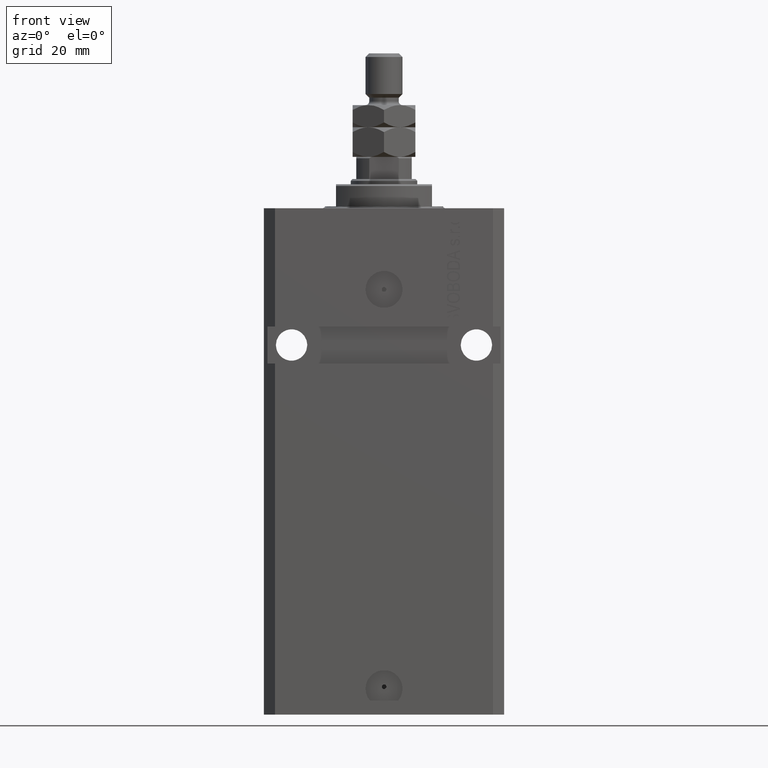
[diagram: clean part render]
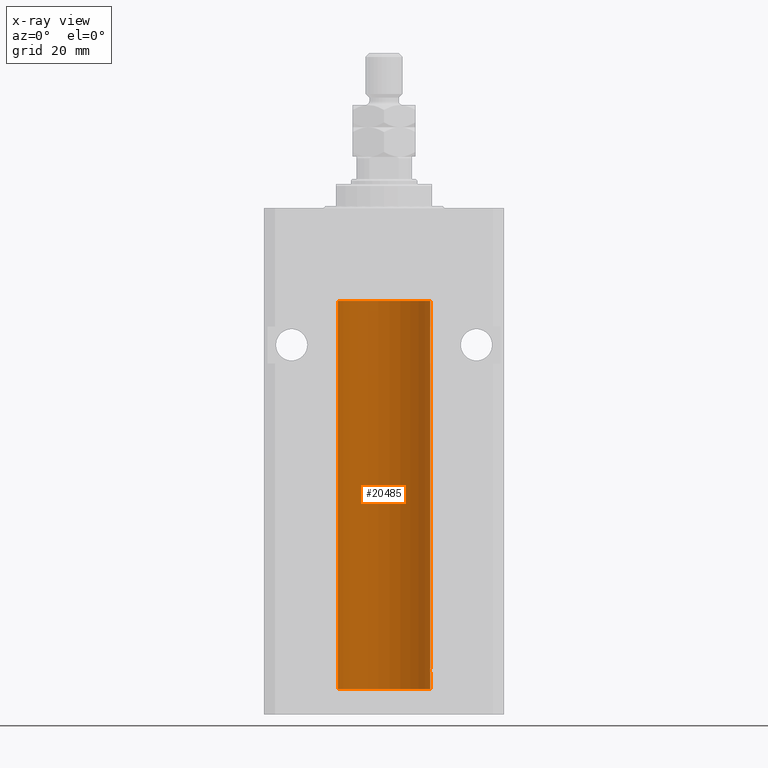
[diagram: x-ray — body ghosted, one internal face saturated and labeled with its STEP entity id]
A machine part, front view, then the same camera in x-ray: the body is ghosted and one INTERNAL B-rep face — a face not visible from any outside direction — is saturated and labeled: STEP entity #20485.
In plain terms, the highlighted cylindrical surface (partial cylindrical patch) has radius 12.5 mm, axis along (0, 0, 1).
Its self-contained STEP definition (entity closure, byte-faithful):
#408 = CARTESIAN_POINT ( 'NONE',  ( -12.50000000000000000, -1.890568805888175348E-14, -124.3750000000000000 ) ) ;
#1854 = LINE ( 'NONE', #47928, #19823 ) ;
#2025 = CARTESIAN_POINT ( 'NONE',  ( -12.48810268015257563, 0.5573155909661203777, -124.6734741009386909 ) ) ;
#2173 = VERTEX_POINT ( 'NONE', #28604 ) ;
#2505 = CARTESIAN_POINT ( 'NONE',  ( -12.50000000000000000, -1.890568805888175348E-14, -124.3750000000000000 ) ) ;
#2759 = B_SPLINE_CURVE_WITH_KNOTS ( 'NONE', 3,
 ( #2505, #13226, #28434, #9499, #24675, #2025, #17201, #47610, #43882, #24914, #36394, #14683, #30395, #45837 ),
 .UNSPECIFIED., .F., .F.,
 ( 4, 2, 2, 2, 2, 2, 4 ),
 ( 3.496117753580553008E-18, 0.0002442924852390892100, 0.0004885849704781749505, 0.0009771699409563759219, 0.001221462426195476462, 0.001465754911434576785, 0.001954339881912777865 ),
 .UNSPECIFIED. ) ;
#2780 = CARTESIAN_POINT ( 'NONE',  ( 12.48436522214846711, 0.6250000000078859141, -124.9999999999992326 ) ) ;
#2918 = CARTESIAN_POINT ( 'NONE',  ( 12.50000000000000000, 0.000000000000000000, -25.10000000000000142 ) ) ;
#3037 = ORIENTED_EDGE ( 'NONE', *, *, #49270, .F. ) ;
#3270 = VERTEX_POINT ( 'NONE', #25791 ) ;
#4681 = CARTESIAN_POINT ( 'NONE',  ( 12.48436522214887745, 0.6249999999996828093, -124.9184733946234758 ) ) ;
#5050 = CARTESIAN_POINT ( 'NONE',  ( 0.000000000000000000, 0.000000000000000000, -130.0999999999999943 ) ) ;
#5086 = DIRECTION ( 'NONE',  ( -0.000000000000000000, -0.000000000000000000, 1.000000000000000000 ) ) ;
#5296 = DIRECTION ( 'NONE',  ( -0.000000000000000000, -0.000000000000000000, 1.000000000000000000 ) ) ;
#5839 = ORIENTED_EDGE ( 'NONE', *, *, #44443, .T. ) ;
#6082 = VERTEX_POINT ( 'NONE', #39643 ) ;
#6755 = DIRECTION ( 'NONE',  ( 1.000000000000000000, 0.000000000000000000, 0.000000000000000000 ) ) ;
#6826 = ORIENTED_EDGE ( 'NONE', *, *, #25930, .F. ) ;
#7260 = AXIS2_PLACEMENT_3D ( 'NONE', #5050, #5296, #47391 ) ;
#8653 = EDGE_CURVE ( 'NONE', #48416, #38232, #31684, .T. ) ;
#8879 = CARTESIAN_POINT ( 'NONE',  ( -12.50000000000000000, 1.530808498934191521E-15, -130.0999999999999943 ) ) ;
#9424 = ORIENTED_EDGE ( 'NONE', *, *, #13299, .T. ) ;
#9499 = CARTESIAN_POINT ( 'NONE',  ( -12.49625855304193855, 0.3150454781037954621, -124.4540280029748658 ) ) ;
#10179 = AXIS2_PLACEMENT_3D ( 'NONE', #14219, #26417, #6755 ) ;
#10708 = B_SPLINE_CURVE_WITH_KNOTS ( 'NONE', 3,
 ( #45121, #40659, #36914, #21463, #17959, #18452, #29205, #2780 ),
 .UNSPECIFIED., .F., .F.,
 ( 4, 2, 2, 4 ),
 ( 4.913018323501965315E-18, 0.0002443481056285863075, 0.0004886962112571676276, 0.0009773924225142717210 ),
 .UNSPECIFIED. ) ;
#10748 = VERTEX_POINT ( 'NONE', #408 ) ;
#10758 = VERTEX_POINT ( 'NONE', #18572 ) ;
#12397 = CARTESIAN_POINT ( 'NONE',  ( 12.49012055744648642, 0.5002956126656095126, -124.6164171020240445 ) ) ;
#12731 = ORIENTED_EDGE ( 'NONE', *, *, #8653, .T. ) ;
#12871 = EDGE_CURVE ( 'NONE', #10748, #38232, #31738, .T. ) ;
#13226 = CARTESIAN_POINT ( 'NONE',  ( -12.50000000000000178, 0.08260426088727608473, -124.3749999999999858 ) ) ;
#13299 = EDGE_CURVE ( 'NONE', #3270, #6082, #15762, .T. ) ;
#13646 = DIRECTION ( 'NONE',  ( 0.000000000000000000, 0.000000000000000000, 1.000000000000000000 ) ) ;
#14219 = CARTESIAN_POINT ( 'NONE',  ( 0.000000000000000000, 0.000000000000000000, -25.10000000000000142 ) ) ;
#14683 = CARTESIAN_POINT ( 'NONE',  ( -12.49631005746706691, 0.3253680783018559897, -125.5585674046538998 ) ) ;
#14968 = VECTOR ( 'NONE', #5086, 1000.000000000000000 ) ;
#15307 = CARTESIAN_POINT ( 'NONE',  ( 12.50000000000000000, 5.055633433180616021E-15, -125.6250000000000142 ) ) ;
#15500 = VECTOR ( 'NONE', #27768, 1000.000000000000000 ) ;
#15762 = B_SPLINE_CURVE_WITH_KNOTS ( 'NONE', 3,
 ( #32078, #4681, #24099, #39312, #12397, #20363, #19867, #35571 ),
 .UNSPECIFIED., .F., .F.,
 ( 4, 2, 2, 4 ),
 ( 0.0009773924225142717210, 0.001221629287363824694, 0.001465866152213377450, 0.001954339881912483395 ),
 .UNSPECIFIED. ) ;
#16436 = DIRECTION ( 'NONE',  ( -0.000000000000000000, -0.000000000000000000, 1.000000000000000000 ) ) ;
#17026 = CARTESIAN_POINT ( 'NONE',  ( 12.50000000000000000, 0.000000000000000000, -130.0999999999999943 ) ) ;
#17201 = CARTESIAN_POINT ( 'NONE',  ( -12.48436813453758631, 0.6249418250771061611, -124.8366899679892441 ) ) ;
#17959 = CARTESIAN_POINT ( 'NONE',  ( 12.49421963472024544, 0.3844519291903631952, -125.4994730364704907 ) ) ;
#18452 = CARTESIAN_POINT ( 'NONE',  ( 12.48809900631782099, 0.5573988467445673001, -125.3264014793547290 ) ) ;
#18572 = CARTESIAN_POINT ( 'NONE',  ( 12.50000000000000000, 0.000000000000000000, -130.0999999999999943 ) ) ;
#19823 = VECTOR ( 'NONE', #36221, 1000.000000000000000 ) ;
#19867 = CARTESIAN_POINT ( 'NONE',  ( 12.49999999999999467, 0.1631389616600898151, -124.3750000000002274 ) ) ;
#20139 = EDGE_LOOP ( 'NONE', ( #6826, #3037, #42108, #48798, #9424, #5839, #12731, #39426, #25637 ) ) ;
#20363 = CARTESIAN_POINT ( 'NONE',  ( 12.49631206032075781, 0.3252904079142953098, -124.4413970021492872 ) ) ;
#20485 = ADVANCED_FACE ( 'NONE', ( #39188 ), #39434, .F. ) ;
#21463 = CARTESIAN_POINT ( 'NONE',  ( 12.49625698805480845, 0.3151108292486959339, -125.5459369568817038 ) ) ;
#22037 = CIRCLE ( 'NONE', #37999, 12.50000000000000000 ) ;
#22638 = EDGE_CURVE ( 'NONE', #29891, #3270, #10708, .T. ) ;
#24099 = CARTESIAN_POINT ( 'NONE',  ( 12.48520578595315023, 0.6087855079133756009, -124.8365671750934780 ) ) ;
#24230 = VERTEX_POINT ( 'NONE', #8879 ) ;
#24502 = EDGE_CURVE ( 'NONE', #10758, #29891, #1854, .T. ) ;
#24675 = CARTESIAN_POINT ( 'NONE',  ( -12.49422197749723829, 0.3843754434364221040, -124.5004709956809705 ) ) ;
#24856 = CARTESIAN_POINT ( 'NONE',  ( 0.000000000000000000, 0.000000000000000000, -130.0999999999999943 ) ) ;
#24914 = CARTESIAN_POINT ( 'NONE',  ( -12.48809959379011758, 0.5462151254764870956, -125.3146137048161677 ) ) ;
#25637 = ORIENTED_EDGE ( 'NONE', *, *, #40389, .T. ) ;
#25791 = CARTESIAN_POINT ( 'NONE',  ( 12.48436522214846711, 0.6250000000078859141, -124.9999999999992326 ) ) ;
#25930 = EDGE_CURVE ( 'NONE', #24230, #2173, #47330, .T. ) ;
#26417 = DIRECTION ( 'NONE',  ( 0.000000000000000000, 0.000000000000000000, 1.000000000000000000 ) ) ;
#27768 = DIRECTION ( 'NONE',  ( -0.000000000000000000, -0.000000000000000000, 1.000000000000000000 ) ) ;
#28248 = CARTESIAN_POINT ( 'NONE',  ( -12.50000000000000000, 1.530808498934191521E-15, -130.0999999999999943 ) ) ;
#28434 = CARTESIAN_POINT ( 'NONE',  ( -12.49915784441387068, 0.1636601911727856851, -124.3912681898942765 ) ) ;
#28604 = CARTESIAN_POINT ( 'NONE',  ( -12.50000000000017941, 3.883381307462307207E-13, -125.6250000000035953 ) ) ;
#29205 = CARTESIAN_POINT ( 'NONE',  ( 12.48436522214885613, 0.6250000000001550982, -125.1631274754030585 ) ) ;
#29891 = VERTEX_POINT ( 'NONE', #15307 ) ;
#30395 = CARTESIAN_POINT ( 'NONE',  ( -12.49999999999999467, 0.1631761135151251485, -125.6249999999999005 ) ) ;
#31040 = VECTOR ( 'NONE', #16436, 1000.000000000000000 ) ;
#31684 = CIRCLE ( 'NONE', #10179, 12.50000000000000000 ) ;
#31738 = LINE ( 'NONE', #28248, #14968 ) ;
#32078 = CARTESIAN_POINT ( 'NONE',  ( 12.48436522214846711, 0.6250000000078859141, -124.9999999999992326 ) ) ;
#35571 = CARTESIAN_POINT ( 'NONE',  ( 12.50000000000017941, 3.868073647803008074E-13, -124.3749999999964047 ) ) ;
#36221 = DIRECTION ( 'NONE',  ( -0.000000000000000000, -0.000000000000000000, 1.000000000000000000 ) ) ;
#36394 = CARTESIAN_POINT ( 'NONE',  ( -12.49011732893843707, 0.5003763274120269777, -125.3834811128928806 ) ) ;
#36914 = CARTESIAN_POINT ( 'NONE',  ( 12.49915742890631876, 0.1636982395582410321, -125.6087239784702518 ) ) ;
#37999 = AXIS2_PLACEMENT_3D ( 'NONE', #24856, #13646, #47790 ) ;
#38232 = VERTEX_POINT ( 'NONE', #39453 ) ;
#39188 = FACE_OUTER_BOUND ( 'NONE', #20139, .T. ) ;
#39312 = CARTESIAN_POINT ( 'NONE',  ( 12.48810305280568222, 0.5461368461738498326, -124.6852546614267538 ) ) ;
#39426 = ORIENTED_EDGE ( 'NONE', *, *, #12871, .F. ) ;
#39434 = CYLINDRICAL_SURFACE ( 'NONE', #7260, 12.50000000000000000 ) ;
#39453 = CARTESIAN_POINT ( 'NONE',  ( -12.50000000000000000, 1.530808498934191521E-15, -25.10000000000000142 ) ) ;
#39643 = CARTESIAN_POINT ( 'NONE',  ( 12.50000000000017941, 3.868073647803008074E-13, -124.3749999999964047 ) ) ;
#40389 = EDGE_CURVE ( 'NONE', #10748, #2173, #2759, .T. ) ;
#40659 = CARTESIAN_POINT ( 'NONE',  ( 12.50000000000000000, 0.08262306818362785688, -125.6249999999999858 ) ) ;
#42108 = ORIENTED_EDGE ( 'NONE', *, *, #24502, .T. ) ;
#43882 = CARTESIAN_POINT ( 'NONE',  ( -12.48520330846398174, 0.6088355886774048376, -125.1632543185256310 ) ) ;
#44443 = EDGE_CURVE ( 'NONE', #6082, #48416, #46460, .T. ) ;
#45121 = CARTESIAN_POINT ( 'NONE',  ( 12.50000000000000000, 5.055633433180616021E-15, -125.6250000000000142 ) ) ;
#45837 = CARTESIAN_POINT ( 'NONE',  ( -12.50000000000017941, 3.883381307462307207E-13, -125.6250000000035953 ) ) ;
#46460 = LINE ( 'NONE', #17026, #15500 ) ;
#47330 = LINE ( 'NONE', #47574, #31040 ) ;
#47391 = DIRECTION ( 'NONE',  ( 1.000000000000000000, 0.000000000000000000, 0.000000000000000000 ) ) ;
#47574 = CARTESIAN_POINT ( 'NONE',  ( -12.50000000000000000, 1.530808498934191521E-15, -130.0999999999999943 ) ) ;
#47610 = CARTESIAN_POINT ( 'NONE',  ( -12.48436376893640265, 0.6250290278979852010, -125.0813208282447135 ) ) ;
#47790 = DIRECTION ( 'NONE',  ( 1.000000000000000000, 0.000000000000000000, 0.000000000000000000 ) ) ;
#47928 = CARTESIAN_POINT ( 'NONE',  ( 12.50000000000000000, 0.000000000000000000, -130.0999999999999943 ) ) ;
#48416 = VERTEX_POINT ( 'NONE', #2918 ) ;
#48798 = ORIENTED_EDGE ( 'NONE', *, *, #22638, .T. ) ;
#49270 = EDGE_CURVE ( 'NONE', #10758, #24230, #22037, .T. ) ;